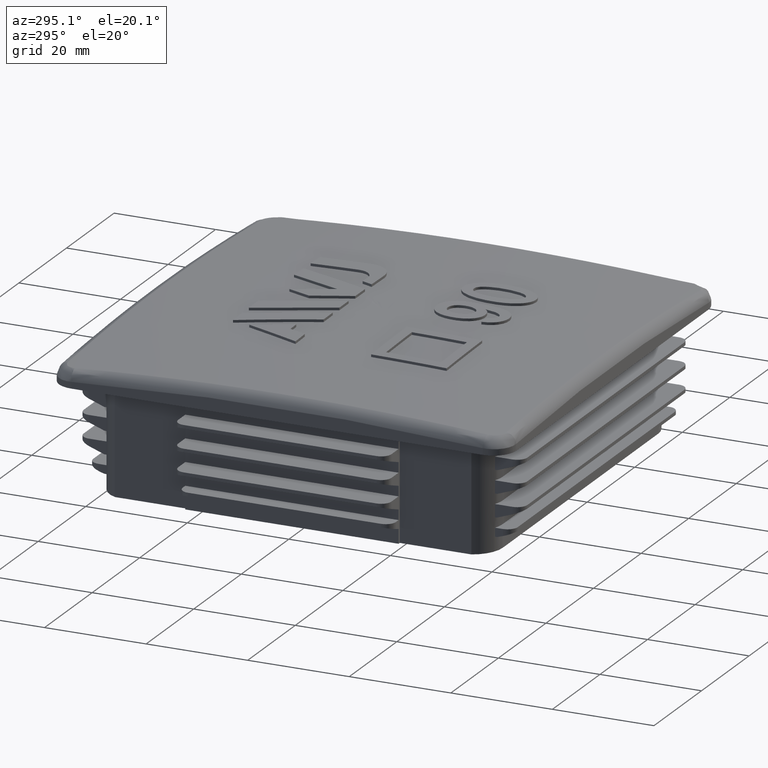
[diagram: clean part render]
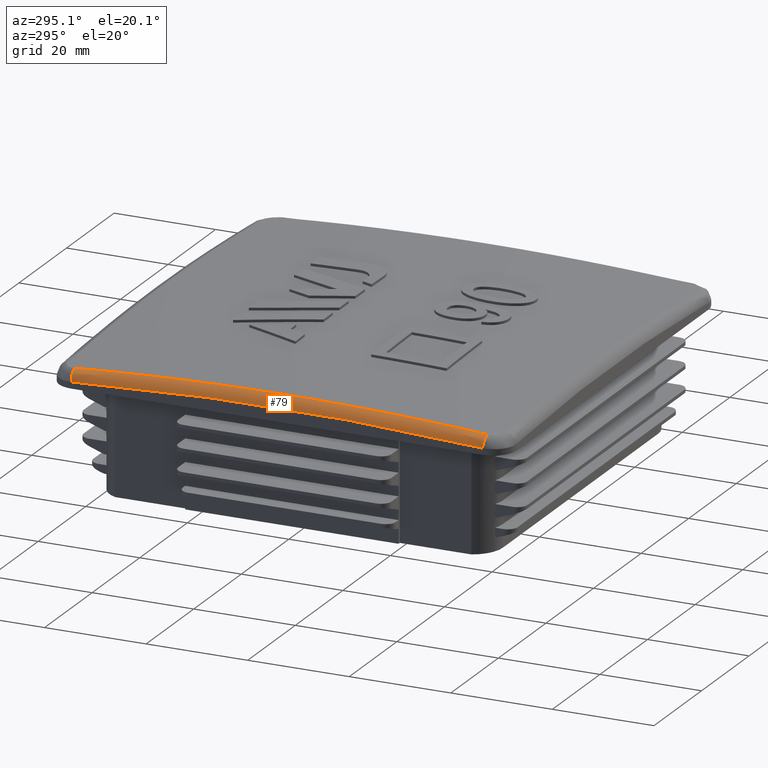
[diagram: same view with one face highlighted and labeled with its STEP entity id]
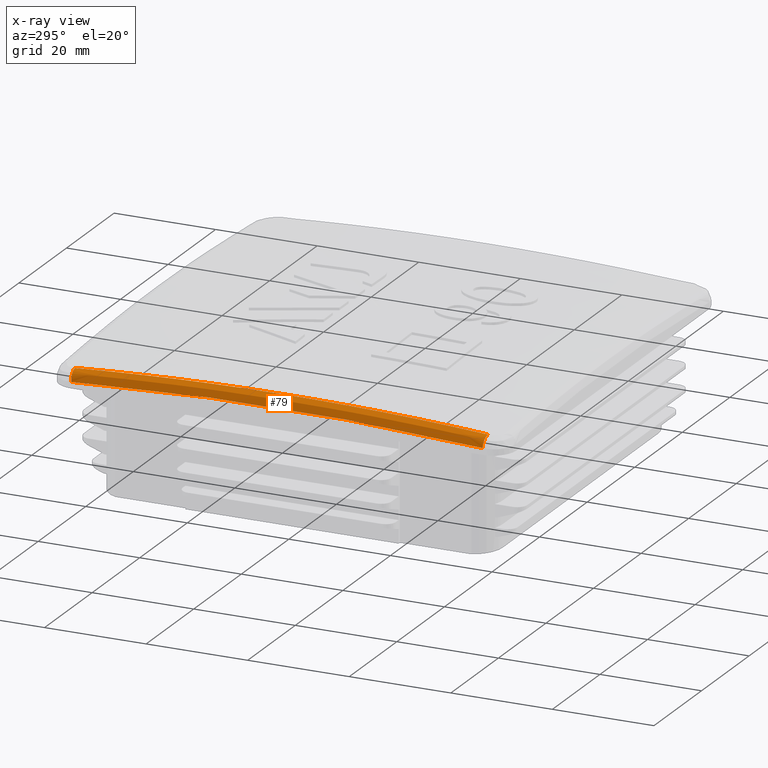
[diagram: x-ray of the same camera — body ghosted, the highlighted face saturated]
A machine part, auxiliary view. The second image highlights one B-rep face of the part: STEP entity #79.
The next image is the same camera in x-ray: the body ghosted, the highlighted face saturated — about 0% of this face is hidden behind the body in this view.
In plain terms, the highlighted face is a freeform B-spline surface patch.
Its self-contained STEP definition (entity closure, byte-faithful):
#79 = ADVANCED_FACE( '', ( #327 ), #328, .T. );
#327 = FACE_OUTER_BOUND( '', #1003, .T. );
#328 = ( B_SPLINE_SURFACE( 3, 2, ( ( #1005, #1006, #1007 ), ( #1008, #1009, #1010 ), ( #1011, #1012, #1013 ), ( #1014, #1015, #1016 ), ( #1017, #1018, #1019 ), ( #1020, #1021, #1022 ), ( #1023, #1024, #1025 ), ( #1026, #1027, #1028 ), ( #1029, #1030, #1031 ), ( #1032, #1033, #1034 ), ( #1035, #1036, #1037 ), ( #1038, #1039, #1040 ), ( #1041, #1042, #1043 ), ( #1044, #1045, #1046 ), ( #1047, #1048, #1049 ), ( #1050, #1051, #1052 ), ( #1053, #1054, #1055 ), ( #1056, #1057, #1058 ), ( #1059, #1060, #1061 ), ( #1062, #1063, #1064 ), ( #1065, #1066, #1067 ), ( #1068, #1069, #1070 ) ), .UNSPECIFIED., .F., .F., .F. )B_SPLINE_SURFACE_WITH_KNOTS( ( 4, 2, 2, 2, 2, 2, 2, 2, 2, 2, 4 ), ( 3, 3 ), ( -6.93889390390723E-018, 0.0101267611568156, 0.0202535223136311, 0.0303802834704467, 0.0405070446272622, 0.0506338057840778, 0.0556971863624856, 0.0582288766516894, 0.0607605669408933, 0.0708873280977089, 0.0810140892545244 ), ( 0.000000000000000, 1.00000000000000 ), .UNSPECIFIED. )RATIONAL_B_SPLINE_SURFACE( ( ( 1.00000000000000, 0.732397985694138, 1.00000000000000 ), ( 1.00000000000000, 0.732322575171632, 1.00000000000000 ), ( 1.00000000000000, 0.732242735462423, 1.00000000000000 ), ( 1.00000000000000, 0.732082604541049, 1.00000000000000 ), ( 1.00000000000000, 0.732002139293812, 1.00000000000000 ), ( 1.00000000000000, 0.731856931194138, 1.00000000000000 ), ( 1.00000000000000, 0.731792518217364, 1.00000000000000 ), ( 1.00000000000000, 0.731701965822520, 1.00000000000000 ), ( 1.00000000000000, 0.731676483441930, 1.00000000000000 ), ( 1.00000000000000, 0.731676373268349, 1.00000000000000 ), ( 1.00000000000000, 0.731701748742457, 1.00000000000000 ), ( 1.00000000000000, 0.731769593795009, 1.00000000000000 ), ( 1.00000000000000, 0.731796996716568, 1.00000000000000 ), ( 1.00000000000000, 0.731843271770897, 1.00000000000000 ), ( 1.00000000000000, 0.731859555417836, 1.00000000000000 ), ( 1.00000000000000, 0.731893492048639, 1.00000000000000 ), ( 1.00000000000000, 0.731911145028060, 1.00000000000000 ), ( 1.00000000000000, 0.732001975637469, 1.00000000000000 ), ( 1.00000000000000, 0.732082506299408, 1.00000000000000 ), ( 1.00000000000000, 0.732242719895779, 1.00000000000000 ), ( 1.00000000000000, 0.732322579019077, 1.00000000000000 ), ( 1.00000000000000, 0.732397985694138, 1.00000000000000 ) ) )BOUNDED_SURFACE(  )REPRESENTATION_ITEM( '' )GEOMETRIC_REPRESENTATION_ITEM(  )SURFACE(  ) );
#1003 = EDGE_LOOP( '', ( #3571, #3572, #3573, #3574 ) );
#1005 = CARTESIAN_POINT( '', ( -45.0000000000000, 40.5000000000000, 23.2681844320705 ) );
#1006 = CARTESIAN_POINT( '', ( -45.0000000000000, 40.6278512273776, 25.1230916938647 ) );
#1007 = CARTESIAN_POINT( '', ( -43.1456272377953, 40.6371605379235, 25.2581542043155 ) );
#1008 = CARTESIAN_POINT( '', ( -45.0000000000000, 37.1281000825349, 23.5005958051975 ) );
#1009 = CARTESIAN_POINT( '', ( -44.9999999999531, 37.2449446491421, 25.3566762900922 ) );
#1010 = CARTESIAN_POINT( '', ( -43.1451847027006, 37.2534241816202, 25.4914137997422 ) );
#1011 = CARTESIAN_POINT( '', ( -45.0000000000000, 33.7556478977272, 23.7028031368793 ) );
#1012 = CARTESIAN_POINT( '', ( -45.0000000000117, 33.8615558295241, 25.5599760111698 ) );
#1013 = CARTESIAN_POINT( '', ( -43.1447176689186, 33.8692166617077, 25.6943591088341 ) );
#1014 = CARTESIAN_POINT( '', ( -45.0000000000000, 27.0096585199265, 24.0479349329873 ) );
#1015 = CARTESIAN_POINT( '', ( -44.9999999999883, 27.0938820505431, 25.9070954731305 ) );
#1016 = CARTESIAN_POINT( '', ( -43.1437797338339, 27.0999343266315, 26.0407505099229 ) );
#1017 = CARTESIAN_POINT( '', ( -45.0000000000000, 23.6361215913791, 24.1908641885294 ) );
#1018 = CARTESIAN_POINT( '', ( -45.0000000000117, 23.7095989540800, 26.0509203115422 ) );
#1019 = CARTESIAN_POINT( '', ( -43.1433085066253, 23.7148616582685, 26.1842014049616 ) );
#1020 = CARTESIAN_POINT( '', ( -45.0000000000000, 16.8879869722644, 24.4187457041133 ) );
#1021 = CARTESIAN_POINT( '', ( -44.9999999999883, 16.9401872979226, 26.2803163929555 ) );
#1022 = CARTESIAN_POINT( '', ( -43.1424582498744, 16.9439032200758, 26.4129146052677 ) );
#1023 = CARTESIAN_POINT( '', ( -45.0000000000000, 13.5133895718332, 24.5037138234091 ) );
#1024 = CARTESIAN_POINT( '', ( -45.0000000000117, 13.5550609117173, 26.3659018612966 ) );
#1025 = CARTESIAN_POINT( '', ( -43.1420811506710, 13.5580198829750, 26.4981928268647 ) );
#1026 = CARTESIAN_POINT( '', ( -45.0000000000000, 6.76315584727990, 24.6168666605466 ) );
#1027 = CARTESIAN_POINT( '', ( -44.9999999999883, 6.78392968106158, 26.4799013108167 ) );
#1028 = CARTESIAN_POINT( '', ( -43.1415510589593, 6.78539857545081, 26.6117586308503 ) );
#1029 = CARTESIAN_POINT( '', ( -45.0000000000000, 3.38751987678694, 24.6450707083157 ) );
#1030 = CARTESIAN_POINT( '', ( -45.0000000000000, 3.39792385773248, 26.5083313128196 ) );
#1031 = CARTESIAN_POINT( '', ( -43.1414019056825, 3.39865942742699, 26.6400656128803 ) );
#1032 = CARTESIAN_POINT( '', ( -45.0000000000000, -3.36478180607542, 24.6451972457172 ) );
#1033 = CARTESIAN_POINT( '', ( -45.0000000000000, -3.37511595231553, 26.5084588426721 ) );
#1034 = CARTESIAN_POINT( '', ( -43.1414012608018, -3.37584658464108, 26.6401926122480 ) );
#1035 = CARTESIAN_POINT( '', ( -45.0000000000000, -6.74144751505357, 24.6171199200136 ) );
#1036 = CARTESIAN_POINT( '', ( -45.0000000000000, -6.76215444451004, 26.4801565390167 ) );
#1037 = CARTESIAN_POINT( '', ( -43.1415497882575, -6.76361859114793, 26.6120128142545 ) );
#1038 = CARTESIAN_POINT( '', ( -45.0000000000000, -11.8072261429935, 24.5323687399857 ) );
#1039 = CARTESIAN_POINT( '', ( -45.0000000000000, -11.8436153595651, 26.3947711380838 ) );
#1040 = CARTESIAN_POINT( '', ( -43.1419469515712, -11.8461976827259, 26.5269523236848 ) );
#1041 = CARTESIAN_POINT( '', ( -45.0000000000000, -13.4959491784233, 24.4970043529587 ) );
#1042 = CARTESIAN_POINT( '', ( -45.0000000000000, -13.5375858409156, 26.3591467587034 ) );
#1043 = CARTESIAN_POINT( '', ( -43.1421073738091, -13.5405438031155, 26.4914588694687 ) );
#1044 = CARTESIAN_POINT( '', ( -45.0000000000000, -16.0292309667732, 24.4331776884289 ) );
#1045 = CARTESIAN_POINT( '', ( -45.0000000000000, -16.0787769352967, 26.2948671656037 ) );
#1046 = CARTESIAN_POINT( '', ( -43.1423782967924, -16.0823039515571, 26.4273992608654 ) );
#1047 = CARTESIAN_POINT( '', ( -45.0000000000000, -16.8736911074042, 24.4101051624292 ) );
#1048 = CARTESIAN_POINT( '', ( -45.0000000000000, -16.9258798119396, 26.2716331884957 ) );
#1049 = CARTESIAN_POINT( '', ( -43.1424736342736, -16.9295974375325, 26.4042425285785 ) );
#1050 = CARTESIAN_POINT( '', ( -45.0000000000000, -18.5626775255093, 24.3603453355553 ) );
#1051 = CARTESIAN_POINT( '', ( -45.0000000000000, -18.6201650135979, 26.2215312211618 ) );
#1052 = CARTESIAN_POINT( '', ( -43.1426723336611, -18.6242658190313, 26.3543010965011 ) );
#1053 = CARTESIAN_POINT( '', ( -45.0000000000000, -19.4072226489737, 24.3336572016716 ) );
#1054 = CARTESIAN_POINT( '', ( -45.0000000000029, -19.4673662430539, 26.1946623951338 ) );
#1055 = CARTESIAN_POINT( '', ( -43.1427756955448, -19.4716596231905, 26.3275155606462 ) );
#1056 = CARTESIAN_POINT( '', ( -45.0000000000000, -23.6293040578451, 24.1911540732444 ) );
#1057 = CARTESIAN_POINT( '', ( -44.9999999999883, -23.7027597048092, 26.0512120150241 ) );
#1058 = CARTESIAN_POINT( '', ( -43.1433075482292, -23.7080208135322, 26.1844923479124 ) );
#1059 = CARTESIAN_POINT( '', ( -45.0000000000000, -27.0055197303360, 24.0481326122248 ) );
#1060 = CARTESIAN_POINT( '', ( -45.0000000000000, -27.0897300026361, 25.9072943242220 ) );
#1061 = CARTESIAN_POINT( '', ( -43.1437791584449, -27.0957812987418, 26.0409489106007 ) );
#1062 = CARTESIAN_POINT( '', ( -45.0000000000000, -33.7549921762069, 23.7028507398026 ) );
#1063 = CARTESIAN_POINT( '', ( -45.0000000000000, -33.8608979548100, 25.5600238548796 ) );
#1064 = CARTESIAN_POINT( '', ( -43.1447175776983, -33.8685586237480, 25.6944068855075 ) );
#1065 = CARTESIAN_POINT( '', ( -45.0000000000000, -37.1282486435532, 23.5005855652999 ) );
#1066 = CARTESIAN_POINT( '', ( -45.0000000000000, -37.2450936976100, 25.3566659982879 ) );
#1067 = CARTESIAN_POINT( '', ( -43.1451847222358, -37.2535732668197, 25.4914035224750 ) );
#1068 = CARTESIAN_POINT( '', ( -45.0000000000000, -40.4999999999999, 23.2681844320705 ) );
#1069 = CARTESIAN_POINT( '', ( -45.0000000000000, -40.6278512273776, 25.1230916938647 ) );
#1070 = CARTESIAN_POINT( '', ( -43.1456272377953, -40.6371605379234, 25.2581542043155 ) );
#3571 = ORIENTED_EDGE( '', *, *, #5552, .T. );
#3572 = ORIENTED_EDGE( '', *, *, #5553, .F. );
#3573 = ORIENTED_EDGE( '', *, *, #5550, .T. );
#3574 = ORIENTED_EDGE( '', *, *, #5554, .F. );
#5550 = EDGE_CURVE( '', #6236, #6234, #6237, .T. );
#5552 = EDGE_CURVE( '', #6239, #6240, #6241, .T. );
#5553 = EDGE_CURVE( '', #6236, #6240, #6242, .T. );
#5554 = EDGE_CURVE( '', #6239, #6234, #6243, .T. );
#6234 = VERTEX_POINT( '', #7314 );
#6236 = VERTEX_POINT( '', #7363 );
#6237 = CIRCLE( '', #7364, 2.00000000000000 );
#6239 = VERTEX_POINT( '', #7408 );
#6240 = VERTEX_POINT( '', #7409 );
#6241 = CIRCLE( '', #7410, 2.00000000000000 );
#6242 = B_SPLINE_CURVE_WITH_KNOTS( '', 3, ( #7411, #7412, #7413, #7414, #7415, #7416, #7417, #7418, #7419, #7420, #7421, #7422, #7423, #7424, #7425, #7426, #7427, #7428, #7429, #7430, #7431, #7432, #7433, #7434, #7435, #7436 ), .UNSPECIFIED., .F., .F., ( 4, 2, 2, 2, 1, 1, 1, 1, 2, 2, 2, 1, 2, 2, 1, 4 ), ( 0.000000000000000, 0.0101608319472013, 0.0203216638944027, 0.0304824958416040, 0.0355629118152047, 0.0406433277888054, 0.0457237437624060, 0.0508041597360067, 0.0558845757096074, 0.0584247836964077, 0.0596948876898079, 0.0609649916832081, 0.0711258236304094, 0.0736660316172097, 0.0762062396040100, 0.0812866555776106 ), .UNSPECIFIED. );
#6243 = B_SPLINE_CURVE_WITH_KNOTS( '', 3, ( #7437, #7438, #7439, #7440, #7441, #7442, #7443, #7444, #7445, #7446, #7447, #7448, #7449, #7450, #7451, #7452, #7453, #7454, #7455, #7456, #7457, #7458, #7459 ), .UNSPECIFIED., .F., .F., ( 4, 2, 2, 2, 2, 1, 1, 1, 1, 1, 2, 2, 2, 4 ), ( 0.000000000000000, 0.0101374403042641, 0.0202748806085281, 0.0215420606465611, 0.0228092406845942, 0.0253436007606602, 0.0304123209127923, 0.0354810410649243, 0.0405497612170564, 0.0456184813691884, 0.0506872015213205, 0.0608246418255846, 0.0709620821298487, 0.0810995224341129 ), .UNSPECIFIED. );
#7314 = CARTESIAN_POINT( '', ( -45.0000000000000, 40.5000000000000, 23.2681844320706 ) );
#7363 = CARTESIAN_POINT( '', ( -43.1456272377953, 40.6371605379235, 25.2581542043155 ) );
#7364 = AXIS2_PLACEMENT_3D( '', #10807, #10808, #10809 );
#7408 = CARTESIAN_POINT( '', ( -45.0000000000000, -40.4999999999999, 23.2681844320705 ) );
#7409 = CARTESIAN_POINT( '', ( -43.1456272377953, -40.6371605379234, 25.2581542043155 ) );
#7410 = AXIS2_PLACEMENT_3D( '', #10810, #10811, #10812 );
#7411 = CARTESIAN_POINT( '', ( -43.1456272377953, 40.6371605379235, 25.2581542043155 ) );
#7412 = CARTESIAN_POINT( '', ( -43.1451847673156, 37.2539177693438, 25.4913797740156 ) );
#7413 = CARTESIAN_POINT( '', ( -43.1447177941488, 33.8701204765909, 25.6943058041657 ) );
#7414 = CARTESIAN_POINT( '', ( -43.1437799420924, 27.1014373722730, 26.0406806504612 ) );
#7415 = CARTESIAN_POINT( '', ( -43.1433087355218, 23.7165516488240, 26.1841342804338 ) );
#7416 = CARTESIAN_POINT( '', ( -43.1424584607751, 16.9457154537625, 26.4128634245258 ) );
#7417 = CARTESIAN_POINT( '', ( -43.1420813220615, 13.5597652697954, 26.4981546609252 ) );
#7418 = CARTESIAN_POINT( '', ( -43.1416836822108, 8.48005768834660, 26.5833464100211 ) );
#7419 = CARTESIAN_POINT( '', ( -43.1414747436127, 5.09332510289435, 26.6258872964979 ) );
#7420 = CARTESIAN_POINT( '', ( -43.1413653089203, 0.0124484054836397, 26.6471987490153 ) );
#7421 = CARTESIAN_POINT( '', ( -43.1414736992306, -5.06920459775785, 26.6260930545826 ) );
#7422 = CARTESIAN_POINT( '', ( -43.1417865095070, -10.1516361046745, 26.5624500858614 ) );
#7423 = CARTESIAN_POINT( '', ( -43.1421073639615, -13.5404464763958, 26.4914611325777 ) );
#7424 = CARTESIAN_POINT( '', ( -43.1423782910190, -16.0822522556071, 26.4274006586463 ) );
#7425 = CARTESIAN_POINT( '', ( -43.1424736292983, -16.9295538540390, 26.4042437516669 ) );
#7426 = CARTESIAN_POINT( '', ( -43.1426226537426, -18.2005560437794, 26.3667877429357 ) );
#7427 = CARTESIAN_POINT( '', ( -43.1426733324119, -18.6242384168281, 26.3538487423128 ) );
#7428 = CARTESIAN_POINT( '', ( -43.1427764435822, -19.4715889339835, 26.3270621306566 ) );
#7429 = CARTESIAN_POINT( '', ( -43.1432485890033, -23.2844924294697, 26.2024374922347 ) );
#7430 = CARTESIAN_POINT( '', ( -43.1437791647967, -27.0958271486465, 26.0409480007551 ) );
#7431 = CARTESIAN_POINT( '', ( -43.1443657112977, -31.3290617276401, 25.8243447120063 ) );
#7432 = CARTESIAN_POINT( '', ( -43.1444830070635, -32.1756411286495, 25.7791651078105 ) );
#7433 = CARTESIAN_POINT( '', ( -43.1447165758028, -33.8685661731586, 25.6850759660454 ) );
#7434 = CARTESIAN_POINT( '', ( -43.1450654344128, -36.4076100930056, 25.5383474013998 ) );
#7435 = CARTESIAN_POINT( '', ( -43.1454060129461, -38.9456186030293, 25.3747615122809 ) );
#7436 = CARTESIAN_POINT( '', ( -43.1456272377953, -40.6371605379234, 25.2581542043155 ) );
#7437 = CARTESIAN_POINT( '', ( -45.0000000000000, -40.4999999999999, 23.2681844320706 ) );
#7438 = CARTESIAN_POINT( '', ( -45.0000000000000, -37.1282487114366, 23.5005855604364 ) );
#7439 = CARTESIAN_POINT( '', ( -45.0000000000000, -33.7549921762107, 23.7028507398764 ) );
#7440 = CARTESIAN_POINT( '', ( -45.0000000000000, -27.0055197303321, 24.0481326121509 ) );
#7441 = CARTESIAN_POINT( '', ( -45.0000000000000, -23.6293040578510, 24.1911540733277 ) );
#7442 = CARTESIAN_POINT( '', ( -45.0000000000000, -19.8294307898601, 24.3194068888185 ) );
#7443 = CARTESIAN_POINT( '', ( -45.0000000000000, -19.4072000029825, 24.3332038152352 ) );
#7444 = CARTESIAN_POINT( '', ( -45.0000000000000, -18.5626932544056, 24.3598932408044 ) );
#7445 = CARTESIAN_POINT( '', ( -45.0000000000000, -18.1404309209844, 24.3727852922747 ) );
#7446 = CARTESIAN_POINT( '', ( -45.0000000000000, -16.8736911074015, 24.4101051624273 ) );
#7447 = CARTESIAN_POINT( '', ( -45.0000000000000, -14.3403106961436, 24.4793221594321 ) );
#7448 = CARTESIAN_POINT( '', ( -45.0000000000000, -10.1185031190928, 24.5677324963020 ) );
#7449 = CARTESIAN_POINT( '', ( -45.0000000000000, -5.05311493493404, 24.6311435870747 ) );
#7450 = CARTESIAN_POINT( '', ( -45.0000000000000, 0.0114978931628731, 24.6521768275565 ) );
#7451 = CARTESIAN_POINT( '', ( -45.0000000000000, 5.07533758930748, 24.6309537786436 ) );
#7452 = CARTESIAN_POINT( '', ( -45.0000000000000, 8.45071427841528, 24.5885784513347 ) );
#7453 = CARTESIAN_POINT( '', ( -45.0000000000000, 13.5133895718390, 24.5037138232638 ) );
#7454 = CARTESIAN_POINT( '', ( -45.0000000000000, 16.8879869722624, 24.4187457042939 ) );
#7455 = CARTESIAN_POINT( '', ( -45.0000000000000, 23.6361215913810, 24.1908641883489 ) );
#7456 = CARTESIAN_POINT( '', ( -45.0000000000000, 27.0096585199261, 24.0479349329291 ) );
#7457 = CARTESIAN_POINT( '', ( -45.0000000000000, 33.7556478977275, 23.7028031369373 ) );
#7458 = CARTESIAN_POINT( '', ( -45.0000000000000, 37.1281002590938, 23.5005957926537 ) );
#7459 = CARTESIAN_POINT( '', ( -45.0000000000000, 40.4999999999999, 23.2681844320706 ) );
#10807 = CARTESIAN_POINT( '', ( -43.0000000000000, 40.5000000000000, 23.2681844320705 ) );
#10808 = DIRECTION( '', ( 3.70777581564289E-016, -0.997633037735946, 0.0687627953020291 ) );
#10809 = DIRECTION( '', ( 0.000000000000000, -0.0687627953020291, -0.997633037735946 ) );
#10810 = CARTESIAN_POINT( '', ( -43.0000000000000, -40.5000000000000, 23.2681844320705 ) );
#10811 = DIRECTION( '', ( 1.46948412091647E-014, 0.997633037735947, 0.0687627953020154 ) );
#10812 = DIRECTION( '', ( 0.000000000000000, -0.0687627953020154, 0.997633037735947 ) );